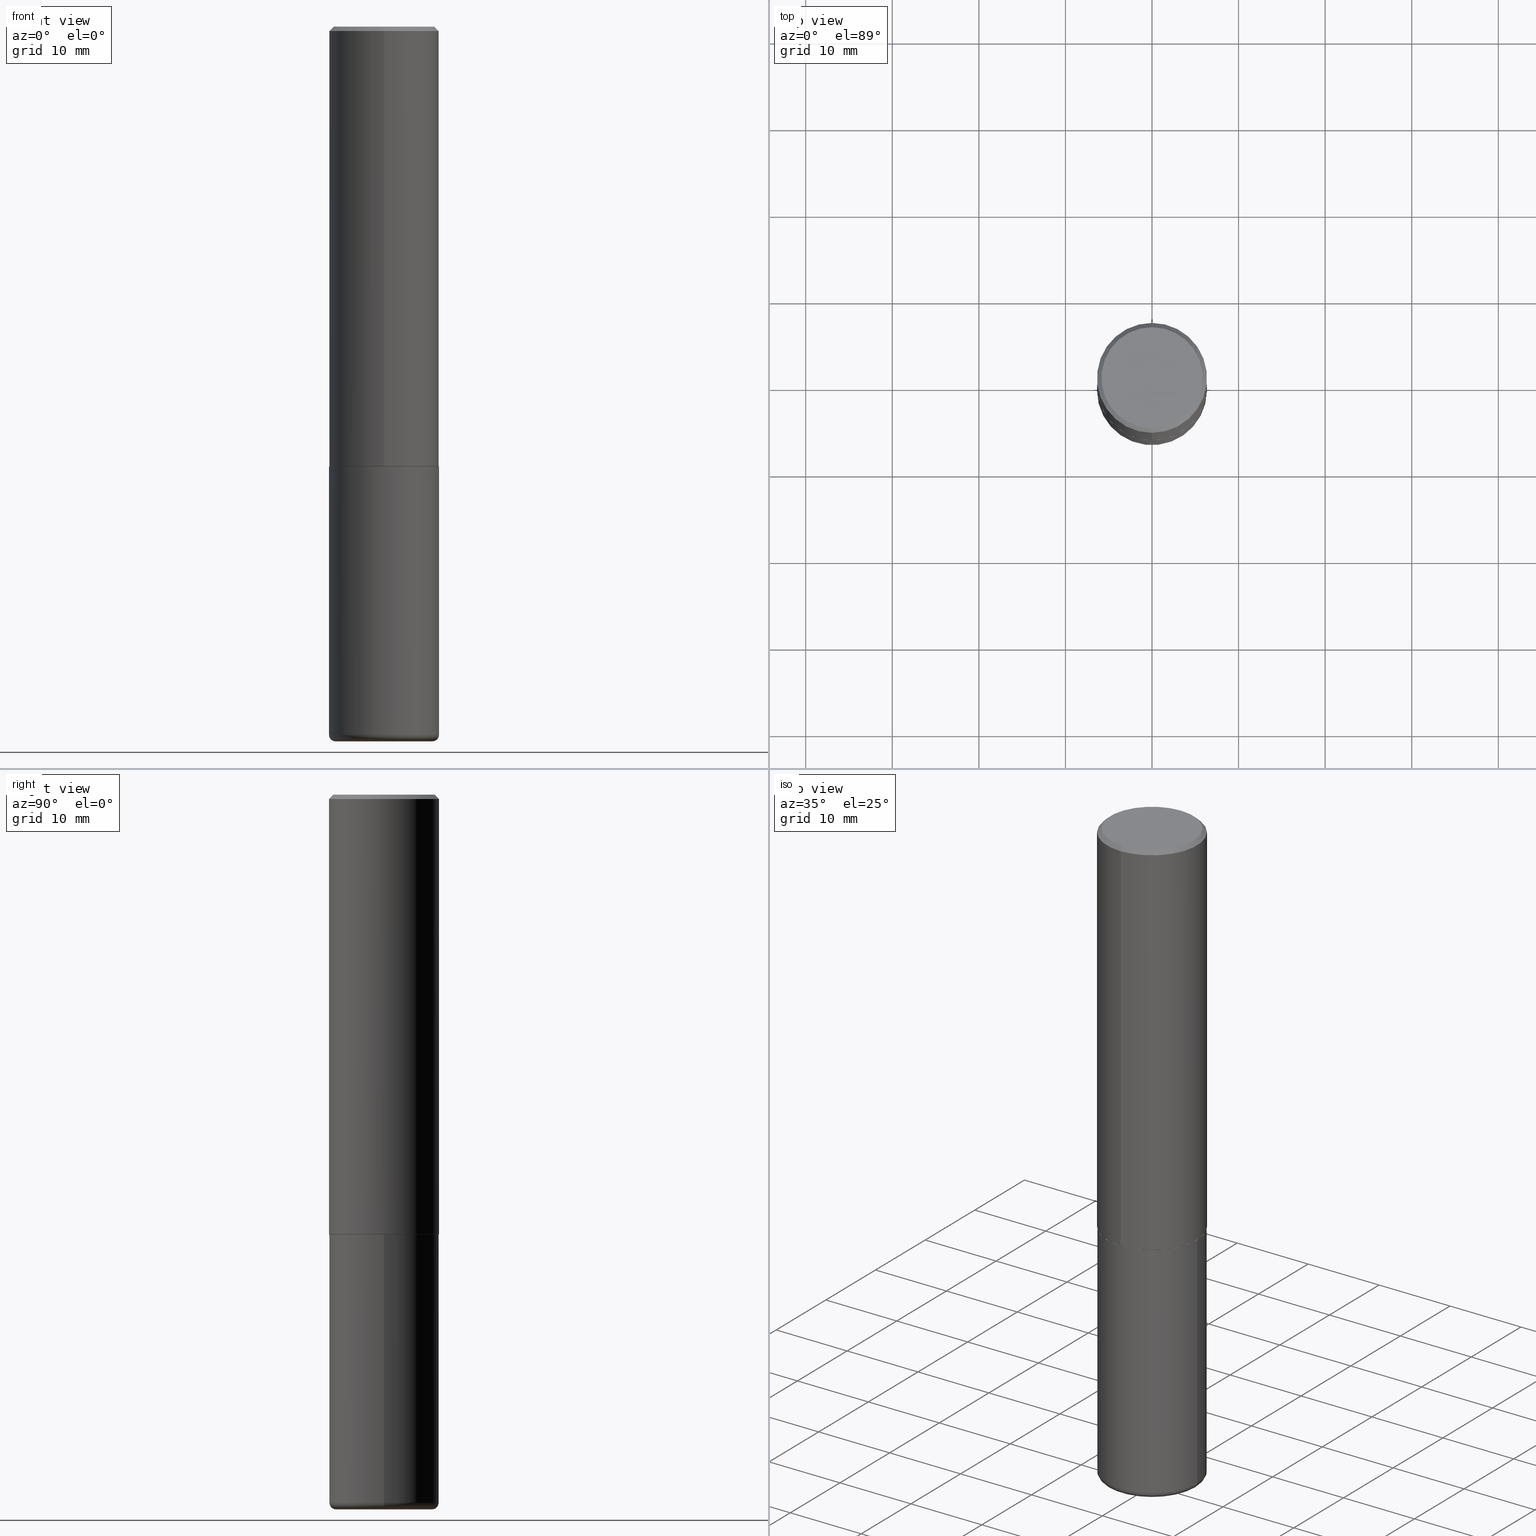
[diagram: canonical four-view strip — front | top / right | iso, engineering-drawing reading convention]
A machine part, canonical four-view strip (front | top / right | iso — engineering-drawing reading convention). The complete STEP part file that produces these views, byte-faithful:
ISO-10303-21;
HEADER;
FILE_DESCRIPTION (( 'STEP AP203' ),
    '1' );
FILE_NAME ('77345.STEP',
    '2024-05-02T19:30:28',
    ( '' ),
    ( '' ),
    'SwSTEP 2.0',
    'SolidWorks 2023',
    '' );
FILE_SCHEMA (( 'CONFIG_CONTROL_DESIGN' ));
ENDSEC;

DATA;
#1 = DIRECTION ( 'NONE',  ( -1.000000000000000000, 7.105427357601001859E-15, 0.000000000000000000 ) ) ;
#2 = PLANE ( 'NONE',  #59 ) ;
#3 = ORIENTED_EDGE ( 'NONE', *, *, #143, .T. ) ;
#4 = DIRECTION ( 'NONE',  ( 2.444078991372175563E-29, -3.493471632758652550E-15, -1.000000000000000000 ) ) ;
#5 = CONICAL_SURFACE ( 'NONE', #258, 0.2500000000000000555, 0.7853981633974466137 ) ;
#6 = EDGE_LOOP ( 'NONE', ( #95, #199, #263, #261 ) ) ;
#7 = CIRCLE ( 'NONE', #102, 0.2500000000000000555 ) ;
#8 = CARTESIAN_POINT ( 'NONE',  ( 4.888157982744351127E-29, -6.986943265517304311E-15, -2.000000000000000000 ) ) ;
#9 = PERSON_AND_ORGANIZATION ( #47, #25 ) ;
#10 = EDGE_CURVE ( 'NONE', #130, #390, #146, .T. ) ;
#11 = DATE_TIME_ROLE ( 'creation_date' ) ;
#12 = CIRCLE ( 'NONE', #67, 0.2199999999999999734 ) ;
#13 = APPLICATION_PROTOCOL_DEFINITION ( 'international standard', 'config_control_design', 1994, #416 ) ;
#14 = DATE_AND_TIME ( #270, #326 ) ;
#15 = APPROVAL ( #267, 'UNSPECIFIED' ) ;
#16 = CLOSED_SHELL ( 'NONE', ( #204, #175, #185, #217, #85, #135 ) ) ;
#17 = CC_DESIGN_SECURITY_CLASSIFICATION ( #151, ( #373 ) ) ;
#18 = LINE ( 'NONE', #121, #379 ) ;
#19 = EDGE_CURVE ( 'NONE', #230, #311, #234, .T. ) ;
#20 = CC_DESIGN_PERSON_AND_ORGANIZATION_ASSIGNMENT ( #269, #145, ( #262 ) ) ;
#21 = DIRECTION ( 'NONE',  ( 1.000000000000000000, -6.982962677686266711E-15, 0.000000000000000000 ) ) ;
#22 = DIRECTION ( 'NONE',  ( -2.445468806185136597E-29, 3.491481338843145583E-15, 1.000000000000000000 ) ) ;
#23 = ADVANCED_FACE ( 'NONE', ( #74 ), #5, .T. ) ;
#24 = VECTOR ( 'NONE', #36, 39.37007874015748854 ) ;
#25 = ORGANIZATION ( 'UNSPECIFIED', 'UNSPECIFIED', '' ) ;
#26 = CYLINDRICAL_SURFACE ( 'NONE', #296, 0.2500000000000000000 ) ;
#27 = DIRECTION ( 'NONE',  ( -4.937700262165053702E-15, -0.7071067811866175168, 0.7071067811864775177 ) ) ;
#28 = VERTEX_POINT ( 'NONE', #323 ) ;
#29 = DIMENSIONAL_EXPONENTS ( 1.000000000000000000, 0.000000000000000000, 0.000000000000000000, 0.000000000000000000, 0.000000000000000000, 0.000000000000000000, 0.000000000000000000 ) ;
#30 = DIRECTION ( 'NONE',  ( 1.000000000000000000, -6.982962677686263555E-15, 0.000000000000000000 ) ) ;
#31 = EDGE_LOOP ( 'NONE', ( #385, #165, #383, #223 ) ) ;
#32 = AXIS2_PLACEMENT_3D ( 'NONE', #179, #182, #21 ) ;
#33 =( CONVERSION_BASED_UNIT ( 'INCH', #315 ) LENGTH_UNIT ( ) NAMED_UNIT ( #29 ) );
#34 = AXIS2_PLACEMENT_3D ( 'NONE', #75, #101, #347 ) ;
#35 = ORIENTED_EDGE ( 'NONE', *, *, #313, .F. ) ;
#36 = DIRECTION ( 'NONE',  ( 4.937700262164538576E-15, 0.7071067811865437980, -0.7071067811865511255 ) ) ;
#37 = VERTEX_POINT ( 'NONE', #178 ) ;
#38 = PLANE ( 'NONE',  #34 ) ;
#39 = ORIENTED_EDGE ( 'NONE', *, *, #117, .F. ) ;
#40 = ADVANCED_FACE ( 'NONE', ( #119 ), #42, .T. ) ;
#41 = SECURITY_CLASSIFICATION_LEVEL ( 'unclassified' ) ;
#42 = CONICAL_SURFACE ( 'NONE', #53, 0.2489999999999999991, 0.7853981633975507526 ) ;
#43 =( GEOMETRIC_REPRESENTATION_CONTEXT ( 3 ) GLOBAL_UNCERTAINTY_ASSIGNED_CONTEXT ( ( #208 ) ) GLOBAL_UNIT_ASSIGNED_CONTEXT ( ( #33, #164, #286 ) ) REPRESENTATION_CONTEXT ( 'NONE', 'WORKASPACE' ) );
#44 = PERSON_AND_ORGANIZATION ( #47, #25 ) ;
#45 = EDGE_CURVE ( 'NONE', #230, #169, #89, .T. ) ;
#46 = EDGE_CURVE ( 'NONE', #222, #37, #295, .T. ) ;
#47 = PERSON ( 'UNSPECIFIED', 'UNSPECIFIED', 'UNSPECIFIED', ('UNSPECIFIED'), ('UNSPECIFIED'), ('UNSPECIFIED') ) ;
#48 = AXIS2_PLACEMENT_3D ( 'NONE', #291, #226, #137 ) ;
#49 = EDGE_CURVE ( 'NONE', #290, #287, #183, .T. ) ;
#50 = COORDINATED_UNIVERSAL_TIME_OFFSET ( 5, 0, .BEHIND. ) ;
#51 = CARTESIAN_POINT ( 'NONE',  ( 4.885713903752978284E-29, -6.983449793884546288E-15, -1.998999999999999888 ) ) ;
#52 = CARTESIAN_POINT ( 'NONE',  ( 1.776356839400276103E-15, 0.2499999999999932832, -1.999000000000000776 ) ) ;
#53 = AXIS2_PLACEMENT_3D ( 'NONE', #134, #364, #70 ) ;
#54 = CARTESIAN_POINT ( 'NONE',  ( 0.2199999999999999734, -1.277882170016590784E-14, -3.220000000000000195 ) ) ;
#55 = DIRECTION ( 'NONE',  ( -2.445468806185136597E-29, 3.491481338843145583E-15, 1.000000000000000000 ) ) ;
#56 = ADVANCED_FACE ( 'NONE', ( #293 ), #2, .F. ) ;
#57 = DIRECTION ( 'NONE',  ( 2.438088387897960049E-29, -3.491481338843145188E-15, -1.000000000000000000 ) ) ;
#58 = AXIS2_PLACEMENT_3D ( 'NONE', #337, #57, #245 ) ;
#59 = AXIS2_PLACEMENT_3D ( 'NONE', #229, #363, #360 ) ;
#60 = CARTESIAN_POINT ( 'NONE',  ( -1.738757706743831360E-15, -0.2490000000000069935, -1.999999999999999112 ) ) ;
#61 = ORIENTED_EDGE ( 'NONE', *, *, #46, .T. ) ;
#62 = CARTESIAN_POINT ( 'NONE',  ( 4.885713903752978284E-29, -6.983449793884546288E-15, -1.998999999999999888 ) ) ;
#63 = EDGE_CURVE ( 'NONE', #390, #189, #325, .T. ) ;
#64 = ORIENTED_EDGE ( 'NONE', *, *, #253, .T. ) ;
#65 = ORIENTED_EDGE ( 'NONE', *, *, #63, .F. ) ;
#66 = DIRECTION ( 'NONE',  ( -2.444078991372175563E-29, 3.493471632758652550E-15, 1.000000000000000000 ) ) ;
#67 = AXIS2_PLACEMENT_3D ( 'NONE', #210, #334, #343 ) ;
#68 =( LENGTH_UNIT ( ) NAMED_UNIT ( * ) SI_UNIT ( $, .METRE. ) );
#69 = ORIENTED_EDGE ( 'NONE', *, *, #122, .T. ) ;
#70 = DIRECTION ( 'NONE',  ( -6.982962677686265133E-15, -1.000000000000000000, 3.291383124896702687E-15 ) ) ;
#71 = DIRECTION ( 'NONE',  ( 7.105427357601001859E-15, 1.000000000000000000, -3.491481338843145583E-15 ) ) ;
#72 = CARTESIAN_POINT ( 'NONE',  ( 1.745740669421567269E-15, 0.2499999999999999722, -0.02000000000000096492 ) ) ;
#73 = ORIENTED_EDGE ( 'NONE', *, *, #19, .F. ) ;
#74 = FACE_OUTER_BOUND ( 'NONE', #220, .T. ) ;
#75 = CARTESIAN_POINT ( 'NONE',  ( 4.888157982744351127E-29, -6.986943265517304311E-15, -2.000000000000000000 ) ) ;
#76 = CARTESIAN_POINT ( 'NONE',  ( 7.874409555916140425E-29, -1.124256991107492948E-14, -3.220000000000000195 ) ) ;
#77 = DATE_AND_TIME ( #82, #344 ) ;
#78 = CC_DESIGN_APPROVAL ( #15, ( #207 ) ) ;
#79 = ORIENTED_EDGE ( 'NONE', *, *, #155, .T. ) ;
#80 = PERSON_AND_ORGANIZATION ( #47, #25 ) ;
#81 = ORIENTED_EDGE ( 'NONE', *, *, #10, .F. ) ;
#82 = CALENDAR_DATE ( 2024, 2, 5 ) ;
#83 = AXIS2_PLACEMENT_3D ( 'NONE', #197, #362, #132 ) ;
#84 = CALENDAR_DATE ( 2024, 2, 5 ) ;
#85 = ADVANCED_FACE ( 'NONE', ( #198 ), #138, .T. ) ;
#86 = CARTESIAN_POINT ( 'NONE',  ( 1.358398051899499020E-28, -3.275945279050367640E-15, -3.249999999999999556 ) ) ;
#87 = DIRECTION ( 'NONE',  ( 1.000000000000000000, -6.982962677686266711E-15, 0.000000000000000000 ) ) ;
#88 = DIRECTION ( 'NONE',  ( 1.000000000000000000, -6.982962677686277755E-15, 0.000000000000000000 ) ) ;
#89 = CIRCLE ( 'NONE', #282, 0.2499999999999999722 ) ;
#90 = DIRECTION ( 'NONE',  ( -2.444078991372175563E-29, 3.493471632758652550E-15, 1.000000000000000000 ) ) ;
#91 = DIRECTION ( 'NONE',  ( 1.000000000000000000, -6.982962677686263555E-15, 0.000000000000000000 ) ) ;
#92 = EDGE_LOOP ( 'NONE', ( #316, #294, #136, #142 ) ) ;
#93 = CONICAL_SURFACE ( 'NONE', #336, 0.2500000000000000555, 0.7853981633974466137 ) ;
#94 = DIRECTION ( 'NONE',  ( -2.444078991372175563E-29, 3.493471632758652550E-15, 1.000000000000000000 ) ) ;
#95 = ORIENTED_EDGE ( 'NONE', *, *, #284, .F. ) ;
#96 = EDGE_CURVE ( 'NONE', #28, #311, #335, .T. ) ;
#97 = CARTESIAN_POINT ( 'NONE',  ( -0.2199999999999999734, -9.679375892402709259E-15, -3.220000000000000195 ) ) ;
#98 = ORIENTED_EDGE ( 'NONE', *, *, #403, .T. ) ;
#99 = FACE_OUTER_BOUND ( 'NONE', #382, .T. ) ;
#100 = VERTEX_POINT ( 'NONE', #52 ) ;
#101 = DIRECTION ( 'NONE',  ( -2.444078991372175283E-29, 3.493471632758652550E-15, 1.000000000000000000 ) ) ;
#102 = AXIS2_PLACEMENT_3D ( 'NONE', #224, #279, #324 ) ;
#103 = ADVANCED_FACE ( 'NONE', ( #328 ), #144, .T. ) ;
#104 = ORIENTED_EDGE ( 'NONE', *, *, #45, .T. ) ;
#105 = DIRECTION ( 'NONE',  ( 1.000000000000000000, -6.982962677686265133E-15, 4.883557194083112340E-29 ) ) ;
#106 = EDGE_LOOP ( 'NONE', ( #35, #98, #61, #131 ) ) ;
#107 = PERSON_AND_ORGANIZATION_ROLE ( 'design_supplier' ) ;
#108 = EDGE_LOOP ( 'NONE', ( #168, #413 ) ) ;
#109 = CARTESIAN_POINT ( 'NONE',  ( 0.000000000000000000, 0.000000000000000000, 0.000000000000000000 ) ) ;
#110 = AXIS2_PLACEMENT_3D ( 'NONE', #8, #307, #161 ) ;
#111 = AXIS2_PLACEMENT_3D ( 'NONE', #384, #387, #321 ) ;
#112 = APPLICATION_CONTEXT ( 'configuration controlled 3d designs of mechanical parts and assemblies' ) ;
#113 = COORDINATED_UNIVERSAL_TIME_OFFSET ( 5, 0, .BEHIND. ) ;
#114 = SHAPE_DEFINITION_REPRESENTATION ( #174, #214 ) ;
#115 = VERTEX_POINT ( 'NONE', #308 ) ;
#116 = APPROVAL_STATUS ( 'not_yet_approved' ) ;
#117 = EDGE_CURVE ( 'NONE', #311, #28, #271, .T. ) ;
#118 = AXIS2_PLACEMENT_3D ( 'NONE', #62, #94, #354 ) ;
#119 = FACE_OUTER_BOUND ( 'NONE', #6, .T. ) ;
#120 = CARTESIAN_POINT ( 'NONE',  ( -0.2199999999999999734, -9.625166702121343187E-15, -3.249999999999999556 ) ) ;
#121 = CARTESIAN_POINT ( 'NONE',  ( 1.769251412042697971E-15, 0.2489999999999930047, -2.000000000000000888 ) ) ;
#122 = EDGE_CURVE ( 'NONE', #390, #130, #244, .T. ) ;
#123 = DIRECTION ( 'NONE',  ( -4.851104656540954809E-15, -0.7071067811865486830, -0.7071067811865462405 ) ) ;
#124 = AXIS2_PLACEMENT_3D ( 'NONE', #51, #306, #212 ) ;
#125 = CC_DESIGN_APPROVAL ( #388, ( #373 ) ) ;
#126 = CYLINDRICAL_SURFACE ( 'NONE', #206, 0.2500000000000000000 ) ;
#127 = EDGE_CURVE ( 'NONE', #115, #169, #162, .T. ) ;
#128 = CARTESIAN_POINT ( 'NONE',  ( -0.2499999999999998057, -9.466213071674679013E-15, -3.220000000000000195 ) ) ;
#129 = CARTESIAN_POINT ( 'NONE',  ( -0.2500000000000000000, -7.336409454980359463E-15, -2.000000000000000000 ) ) ;
#130 = VERTEX_POINT ( 'NONE', #181 ) ;
#131 = ORIENTED_EDGE ( 'NONE', *, *, #394, .F. ) ;
#132 = DIRECTION ( 'NONE',  ( -6.982962677686266711E-15, -1.000000000000000000, 3.493471632758652550E-15 ) ) ;
#133 = ORIENTED_EDGE ( 'NONE', *, *, #127, .F. ) ;
#134 = CARTESIAN_POINT ( 'NONE',  ( 4.888157982744351127E-29, -6.986943265517304311E-15, -2.000000000000000000 ) ) ;
#135 = ADVANCED_FACE ( 'NONE', ( #277 ), #275, .T. ) ;
#136 = ORIENTED_EDGE ( 'NONE', *, *, #155, .F. ) ;
#137 = DIRECTION ( 'NONE',  ( -6.982962677686265922E-15, -1.000000000000000000, 3.493471632758652550E-15 ) ) ;
#138 = TOROIDAL_SURFACE ( 'NONE', #408, 0.2199999999999999734, 0.02999999999999969705 ) ;
#139 = CARTESIAN_POINT ( 'NONE',  ( 4.890937612370273194E-29, -6.982962677686291165E-15, -2.000000000000000000 ) ) ;
#140 = ORIENTED_EDGE ( 'NONE', *, *, #320, .T. ) ;
#141 = PERSON_AND_ORGANIZATION ( #47, #25 ) ;
#142 = ORIENTED_EDGE ( 'NONE', *, *, #246, .F. ) ;
#143 = EDGE_CURVE ( 'NONE', #280, #115, #12, .T. ) ;
#144 = CYLINDRICAL_SURFACE ( 'NONE', #365, 0.2500000000000001110 ) ;
#145 = PERSON_AND_ORGANIZATION_ROLE ( 'design_owner' ) ;
#146 = CIRCLE ( 'NONE', #48, 0.2299999999999997047 ) ;
#147 = LOCAL_TIME ( 15, 30, 28.00000000000000000, #304 ) ;
#148 = COORDINATED_UNIVERSAL_TIME_OFFSET ( 5, 0, .BEHIND. ) ;
#149 = CALENDAR_DATE ( 2024, 2, 5 ) ;
#150 = DIRECTION ( 'NONE',  ( -2.445468806185136597E-29, 3.491481338843145583E-15, 1.000000000000000000 ) ) ;
#151 = SECURITY_CLASSIFICATION ( '', '', #41 ) ;
#152 = CARTESIAN_POINT ( 'NONE',  ( 0.000000000000000000, 0.000000000000000000, 0.000000000000000000 ) ) ;
#153 = DESIGN_CONTEXT ( 'detailed design', #416, 'design' ) ;
#154 = CARTESIAN_POINT ( 'NONE',  ( 1.745740669421567269E-15, 0.2499999999999999722, -0.02000000000000096492 ) ) ;
#155 = EDGE_CURVE ( 'NONE', #222, #100, #300, .T. ) ;
#156 = CARTESIAN_POINT ( 'NONE',  ( 0.000000000000000000, 0.000000000000000000, 0.000000000000000000 ) ) ;
#157 = CARTESIAN_POINT ( 'NONE',  ( -1.715124499442882496E-15, -0.2500000000000001110, -0.01999999999999921632 ) ) ;
#158 = DIRECTION ( 'NONE',  ( -2.445468806185136597E-29, 3.491481338843145583E-15, 1.000000000000000000 ) ) ;
#159 = EDGE_LOOP ( 'NONE', ( #69, #283 ) ) ;
#160 = CARTESIAN_POINT ( 'NONE',  ( 4.888157982744373443E-31, -6.986943265517335816E-17, -0.02000000000000009062 ) ) ;
#161 = DIRECTION ( 'NONE',  ( -6.982962677686265133E-15, -1.000000000000000000, 3.291383124896702687E-15 ) ) ;
#162 = CIRCLE ( 'NONE', #239, 0.02999999999999967970 ) ;
#163 = AXIS2_PLACEMENT_3D ( 'NONE', #109, #402, #209 ) ;
#164 =( NAMED_UNIT ( * ) PLANE_ANGLE_UNIT ( ) SI_UNIT ( $, .RADIAN. ) );
#165 = ORIENTED_EDGE ( 'NONE', *, *, #19, .T. ) ;
#166 = ORIENTED_EDGE ( 'NONE', *, *, #45, .F. ) ;
#167 = CARTESIAN_POINT ( 'NONE',  ( 4.888157982744351127E-29, -6.986943265517304311E-15, -2.000000000000000000 ) ) ;
#168 = ORIENTED_EDGE ( 'NONE', *, *, #96, .T. ) ;
#169 = VERTEX_POINT ( 'NONE', #278 ) ;
#170 = ORIENTED_EDGE ( 'NONE', *, *, #340, .F. ) ;
#171 = VECTOR ( 'NONE', #202, 39.37007874015748143 ) ;
#172 = CONICAL_SURFACE ( 'NONE', #266, 0.2489999999999999991, 0.7853981633975507526 ) ;
#173 = COORDINATED_UNIVERSAL_TIME_OFFSET ( 5, 0, .BEHIND. ) ;
#174 = PRODUCT_DEFINITION_SHAPE ( 'NONE', 'NONE',  #207 ) ;
#175 = ADVANCED_FACE ( 'NONE', ( #309 ), #356, .T. ) ;
#176 = AXIS2_PLACEMENT_3D ( 'NONE', #312, #158, #30 ) ;
#177 = MECHANICAL_CONTEXT ( 'NONE', #112, 'mechanical' ) ;
#178 = CARTESIAN_POINT ( 'NONE',  ( -1.715124499442882496E-15, -0.2500000000000001110, -0.01999999999999921632 ) ) ;
#179 = CARTESIAN_POINT ( 'NONE',  ( 4.890937612370273194E-29, -6.982962677686291165E-15, -2.000000000000000000 ) ) ;
#180 = DIRECTION ( 'NONE',  ( -2.444078991372175563E-29, 3.493471632758652550E-15, 1.000000000000000000 ) ) ;
#181 = CARTESIAN_POINT ( 'NONE',  ( -1.646519519465166376E-15, -0.2299999999999997047, 1.115557654912385711E-15 ) ) ;
#182 = DIRECTION ( 'NONE',  ( -2.445468806185136597E-29, 3.491481338843145583E-15, 1.000000000000000000 ) ) ;
#183 = CIRCLE ( 'NONE', #110, 0.2489999999999999991 ) ;
#184 = CIRCLE ( 'NONE', #176, 0.2499999999999999722 ) ;
#185 = ADVANCED_FACE ( 'NONE', ( #305 ), #186, .F. ) ;
#186 = PLANE ( 'NONE',  #58 ) ;
#187 = ORIENTED_EDGE ( 'NONE', *, *, #320, .F. ) ;
#188 = FACE_OUTER_BOUND ( 'NONE', #355, .T. ) ;
#189 = VERTEX_POINT ( 'NONE', #154 ) ;
#190 = ORIENTED_EDGE ( 'NONE', *, *, #340, .T. ) ;
#191 = DIRECTION ( 'NONE',  ( 1.000000000000000000, -6.982962677686263555E-15, 0.000000000000000000 ) ) ;
#192 = APPROVAL_PERSON_ORGANIZATION ( #9, #15, #205 ) ;
#193 = ORIENTED_EDGE ( 'NONE', *, *, #313, .T. ) ;
#194 = CC_DESIGN_PERSON_AND_ORGANIZATION_ASSIGNMENT ( #44, #399, ( #151 ) ) ;
#195 = CYLINDRICAL_SURFACE ( 'NONE', #83, 0.2500000000000001110 ) ;
#196 = ORIENTED_EDGE ( 'NONE', *, *, #394, .T. ) ;
#197 = CARTESIAN_POINT ( 'NONE',  ( 0.000000000000000000, 0.000000000000000000, 0.000000000000000000 ) ) ;
#198 = FACE_OUTER_BOUND ( 'NONE', #353, .T. ) ;
#199 = ORIENTED_EDGE ( 'NONE', *, *, #49, .T. ) ;
#200 = APPROVAL_PERSON_ORGANIZATION ( #299, #375, #327 ) ;
#201 = APPROVAL_STATUS ( 'not_yet_approved' ) ;
#202 = DIRECTION ( 'NONE',  ( -2.445468806185136877E-29, 3.491481338843145188E-15, 1.000000000000000000 ) ) ;
#203 = DATE_AND_TIME ( #149, #272 ) ;
#204 = ADVANCED_FACE ( 'NONE', ( #374 ), #26, .T. ) ;
#205 = APPROVAL_ROLE ( '' ) ;
#206 = AXIS2_PLACEMENT_3D ( 'NONE', #152, #376, #411 ) ;
#207 = PRODUCT_DEFINITION ( 'UNKNOWN', '', #373, #153 ) ;
#208 = UNCERTAINTY_MEASURE_WITH_UNIT (LENGTH_MEASURE( 1.000000000000000082E-05 ), #33, 'distance_accuracy_value', 'NONE');
#209 = DIRECTION ( 'NONE',  ( 1.000000000000000000, 0.000000000000000000, 0.000000000000000000 ) ) ;
#210 = CARTESIAN_POINT ( 'NONE',  ( 7.947773620101692818E-29, -1.134731435124022127E-14, -3.249999999999999556 ) ) ;
#211 = EDGE_CURVE ( 'NONE', #130, #37, #407, .T. ) ;
#212 = DIRECTION ( 'NONE',  ( -6.982962677686265922E-15, -1.000000000000000000, 3.278217592397112312E-15 ) ) ;
#213 = AXIS2_PLACEMENT_3D ( 'NONE', #249, #221, #378 ) ;
#214 = ADVANCED_BREP_SHAPE_REPRESENTATION ( '77345', ( #348, #339, #163 ), #43 ) ;
#215 = CARTESIAN_POINT ( 'NONE',  ( 0.000000000000000000, 0.000000000000000000, 0.000000000000000000 ) ) ;
#216 = CARTESIAN_POINT ( 'NONE',  ( 7.947773620101692818E-29, -1.134731435124022127E-14, -3.249999999999999556 ) ) ;
#217 = ADVANCED_FACE ( 'NONE', ( #377 ), #126, .T. ) ;
#218 = LINE ( 'NONE', #60, #298 ) ;
#219 = ORIENTED_EDGE ( 'NONE', *, *, #122, .F. ) ;
#220 = EDGE_LOOP ( 'NONE', ( #81, #350, #190, #65 ) ) ;
#221 = DIRECTION ( 'NONE',  ( -2.444078991372175563E-29, 3.493471632758652550E-15, 1.000000000000000000 ) ) ;
#222 = VERTEX_POINT ( 'NONE', #243 ) ;
#223 = ORIENTED_EDGE ( 'NONE', *, *, #253, .F. ) ;
#224 = CARTESIAN_POINT ( 'NONE',  ( 4.888157982744373443E-31, -6.986943265517335816E-17, -0.02000000000000009062 ) ) ;
#225 = CC_DESIGN_PERSON_AND_ORGANIZATION_ASSIGNMENT ( #80, #400, ( #373 ) ) ;
#226 = DIRECTION ( 'NONE',  ( -2.444078991372175563E-29, 3.493471632758652550E-15, 1.000000000000000000 ) ) ;
#227 = AXIS2_PLACEMENT_3D ( 'NONE', #310, #22, #371 ) ;
#228 = LINE ( 'NONE', #359, #398 ) ;
#229 = CARTESIAN_POINT ( 'NONE',  ( 1.606081415867839095E-15, 0.2299999999999997047, -6.474688858455407103E-16 ) ) ;
#230 = VERTEX_POINT ( 'NONE', #128 ) ;
#231 = CARTESIAN_POINT ( 'NONE',  ( 1.772804125721499462E-15, 0.2489999999999930047, -2.000000000000000888 ) ) ;
#232 = EDGE_CURVE ( 'NONE', #115, #280, #342, .T. ) ;
#233 = APPROVAL_DATE_TIME ( #14, #15 ) ;
#234 = LINE ( 'NONE', #361, #171 ) ;
#235 = AXIS2_PLACEMENT_3D ( 'NONE', #216, #248, #91 ) ;
#236 = DATE_TIME_ROLE ( 'classification_date' ) ;
#237 = PERSON_AND_ORGANIZATION ( #47, #25 ) ;
#238 = DATE_AND_TIME ( #329, #147 ) ;
#239 = AXIS2_PLACEMENT_3D ( 'NONE', #54, #370, #88 ) ;
#240 = AXIS2_PLACEMENT_3D ( 'NONE', #97, #71, #1 ) ;
#241 = CARTESIAN_POINT ( 'NONE',  ( -7.626972843823584403E-45, 1.090169890898625670E-30, 3.120591793778966343E-16 ) ) ;
#242 = DIRECTION ( 'NONE',  ( 2.438088387897960049E-29, -3.491481338843145188E-15, -1.000000000000000000 ) ) ;
#243 = CARTESIAN_POINT ( 'NONE',  ( -1.745740669421519543E-15, -0.2500000000000072720, -1.998999999999999000 ) ) ;
#244 = CIRCLE ( 'NONE', #372, 0.2299999999999997047 ) ;
#245 = DIRECTION ( 'NONE',  ( -1.000000000000000000, 6.982962677686265922E-15, -4.876176775795935793E-29 ) ) ;
#246 = EDGE_CURVE ( 'NONE', #287, #222, #218, .T. ) ;
#247 = DIRECTION ( 'NONE',  ( 6.982962677686265133E-15, 1.000000000000000000, -3.500180241882336472E-15 ) ) ;
#248 = DIRECTION ( 'NONE',  ( -2.445468806185136597E-29, 3.491481338843145583E-15, 1.000000000000000000 ) ) ;
#249 = CARTESIAN_POINT ( 'NONE',  ( 4.888157982744373443E-31, -6.986943265517335816E-17, -0.02000000000000009062 ) ) ;
#250 = CLOSED_SHELL ( 'NONE', ( #292, #333, #23, #412, #103, #40, #401, #56 ) ) ;
#251 = DIRECTION ( 'NONE',  ( 6.982962677686265133E-15, 1.000000000000000000, -3.500180241882336472E-15 ) ) ;
#252 = ORIENTED_EDGE ( 'NONE', *, *, #232, .T. ) ;
#253 = EDGE_CURVE ( 'NONE', #169, #28, #406, .T. ) ;
#254 = DIRECTION ( 'NONE',  ( -2.444078991372175563E-29, 3.493471632758652550E-15, 1.000000000000000000 ) ) ;
#255 = ORIENTED_EDGE ( 'NONE', *, *, #46, .F. ) ;
#256 = DIRECTION ( 'NONE',  ( -2.444078991372175563E-29, 3.493471632758652550E-15, 1.000000000000000000 ) ) ;
#257 = ORIENTED_EDGE ( 'NONE', *, *, #143, .F. ) ;
#258 = AXIS2_PLACEMENT_3D ( 'NONE', #297, #281, #247 ) ;
#259 = LOCAL_TIME ( 15, 30, 28.00000000000000000, #50 ) ;
#260 = CARTESIAN_POINT ( 'NONE',  ( 7.874409555916140425E-29, -1.124256991107492948E-14, -3.220000000000000195 ) ) ;
#261 = ORIENTED_EDGE ( 'NONE', *, *, #403, .F. ) ;
#262 = PRODUCT ( '77345', '77345', '', ( #177 ) ) ;
#263 = ORIENTED_EDGE ( 'NONE', *, *, #246, .T. ) ;
#264 = APPROVAL_DATE_TIME ( #203, #388 ) ;
#265 = AXIS2_PLACEMENT_3D ( 'NONE', #139, #150, #87 ) ;
#266 = AXIS2_PLACEMENT_3D ( 'NONE', #167, #256, #392 ) ;
#267 = APPROVAL_STATUS ( 'not_yet_approved' ) ;
#268 = ORIENTED_EDGE ( 'NONE', *, *, #232, .F. ) ;
#269 = PERSON_AND_ORGANIZATION ( #47, #25 ) ;
#270 = CALENDAR_DATE ( 2024, 2, 5 ) ;
#271 = CIRCLE ( 'NONE', #32, 0.2500000000000000000 ) ;
#272 = LOCAL_TIME ( 15, 30, 28.00000000000000000, #148 ) ;
#273 = CARTESIAN_POINT ( 'NONE',  ( 0.2500000000000000000, -1.745740669421566678E-15, 1.219044193948983948E-29 ) ) ;
#274 = PRODUCT_RELATED_PRODUCT_CATEGORY ( 'detail', '', ( #262 ) ) ;
#275 = PLANE ( 'NONE',  #397 ) ;
#276 = DIRECTION ( 'NONE',  ( -6.982962677686265922E-15, -1.000000000000000000, 3.493471632758652550E-15 ) ) ;
#277 = FACE_OUTER_BOUND ( 'NONE', #322, .T. ) ;
#278 = CARTESIAN_POINT ( 'NONE',  ( 0.2499999999999998057, -1.298831058049649300E-14, -3.220000000000000195 ) ) ;
#279 = DIRECTION ( 'NONE',  ( -2.444078991372175563E-29, 3.493471632758652550E-15, 1.000000000000000000 ) ) ;
#280 = VERTEX_POINT ( 'NONE', #120 ) ;
#281 = DIRECTION ( 'NONE',  ( 2.444078991372175563E-29, -3.493471632758652550E-15, -1.000000000000000000 ) ) ;
#282 = AXIS2_PLACEMENT_3D ( 'NONE', #76, #352, #191 ) ;
#283 = ORIENTED_EDGE ( 'NONE', *, *, #10, .T. ) ;
#284 = EDGE_CURVE ( 'NONE', #290, #100, #18, .T. ) ;
#285 = CC_DESIGN_PERSON_AND_ORGANIZATION_ASSIGNMENT ( #237, #302, ( #207 ) ) ;
#286 =( NAMED_UNIT ( * ) SI_UNIT ( $, .STERADIAN. ) SOLID_ANGLE_UNIT ( ) );
#287 = VERTEX_POINT ( 'NONE', #349 ) ;
#288 = DIRECTION ( 'NONE',  ( 5.024295867788576727E-15, 0.7071067811866224018, 0.7071067811864726327 ) ) ;
#289 = ORIENTED_EDGE ( 'NONE', *, *, #49, .F. ) ;
#290 = VERTEX_POINT ( 'NONE', #231 ) ;
#291 = CARTESIAN_POINT ( 'NONE',  ( -7.626972843823584403E-45, 1.090169890898625670E-30, 3.120591793778966343E-16 ) ) ;
#292 = ADVANCED_FACE ( 'NONE', ( #417 ), #172, .T. ) ;
#293 = FACE_OUTER_BOUND ( 'NONE', #159, .T. ) ;
#294 = ORIENTED_EDGE ( 'NONE', *, *, #284, .T. ) ;
#295 = LINE ( 'NONE', #358, #332 ) ;
#296 = AXIS2_PLACEMENT_3D ( 'NONE', #215, #55, #410 ) ;
#297 = CARTESIAN_POINT ( 'NONE',  ( 4.888157982744373443E-31, -6.986943265517335816E-17, -0.02000000000000009062 ) ) ;
#298 = VECTOR ( 'NONE', #27, 39.37007874015748143 ) ;
#299 = PERSON_AND_ORGANIZATION ( #47, #25 ) ;
#300 = CIRCLE ( 'NONE', #124, 0.2500000000000002776 ) ;
#301 = CIRCLE ( 'NONE', #213, 0.2500000000000000555 ) ;
#302 = PERSON_AND_ORGANIZATION_ROLE ( 'creator' ) ;
#303 = ORIENTED_EDGE ( 'NONE', *, *, #345, .F. ) ;
#304 = COORDINATED_UNIVERSAL_TIME_OFFSET ( 5, 0, .BEHIND. ) ;
#305 = FACE_OUTER_BOUND ( 'NONE', #108, .T. ) ;
#306 = DIRECTION ( 'NONE',  ( -2.444078991372175563E-29, 3.493471632758652550E-15, 1.000000000000000000 ) ) ;
#307 = DIRECTION ( 'NONE',  ( -2.444078991372175563E-29, 3.493471632758652550E-15, 1.000000000000000000 ) ) ;
#308 = CARTESIAN_POINT ( 'NONE',  ( 0.2199999999999999734, -1.288356614033119963E-14, -3.249999999999999556 ) ) ;
#309 = FACE_OUTER_BOUND ( 'NONE', #319, .T. ) ;
#310 = CARTESIAN_POINT ( 'NONE',  ( 7.874409555916140425E-29, -1.124256991107492948E-14, -3.220000000000000195 ) ) ;
#311 = VERTEX_POINT ( 'NONE', #129 ) ;
#312 = CARTESIAN_POINT ( 'NONE',  ( 7.874409555916140425E-29, -1.124256991107492948E-14, -3.220000000000000195 ) ) ;
#313 = EDGE_CURVE ( 'NONE', #100, #189, #228, .T. ) ;
#314 = EDGE_LOOP ( 'NONE', ( #73, #104, #64, #39 ) ) ;
#315 = LENGTH_MEASURE_WITH_UNIT ( LENGTH_MEASURE( 0.02539999999999999897 ), #68 );
#316 = ORIENTED_EDGE ( 'NONE', *, *, #345, .T. ) ;
#317 = APPROVAL_PERSON_ORGANIZATION ( #141, #388, #368 ) ;
#318 = FACE_OUTER_BOUND ( 'NONE', #395, .T. ) ;
#319 = EDGE_LOOP ( 'NONE', ( #252, #140, #351, #133 ) ) ;
#320 = EDGE_CURVE ( 'NONE', #280, #230, #357, .T. ) ;
#321 = DIRECTION ( 'NONE',  ( -6.982962677686265133E-15, -1.000000000000000000, 3.291383124896702687E-15 ) ) ;
#322 = EDGE_LOOP ( 'NONE', ( #268, #257 ) ) ;
#323 = CARTESIAN_POINT ( 'NONE',  ( 0.2500000000000000000, -8.728703347107857054E-15, -2.000000000000000000 ) ) ;
#324 = DIRECTION ( 'NONE',  ( -6.982962677686265133E-15, -1.000000000000000000, 3.500180241882336472E-15 ) ) ;
#325 = LINE ( 'NONE', #72, #24 ) ;
#326 = LOCAL_TIME ( 15, 30, 28.00000000000000000, #173 ) ;
#327 = APPROVAL_ROLE ( '' ) ;
#328 = FACE_OUTER_BOUND ( 'NONE', #106, .T. ) ;
#329 = CALENDAR_DATE ( 2024, 2, 5 ) ;
#330 = EDGE_CURVE ( 'NONE', #169, #230, #184, .T. ) ;
#331 = PERSON_AND_ORGANIZATION ( #47, #25 ) ;
#332 = VECTOR ( 'NONE', #66, 39.37007874015748143 ) ;
#333 = ADVANCED_FACE ( 'NONE', ( #99 ), #195, .T. ) ;
#334 = DIRECTION ( 'NONE',  ( -2.445468806185136597E-29, 3.491481338843145583E-15, 1.000000000000000000 ) ) ;
#335 = CIRCLE ( 'NONE', #265, 0.2500000000000000000 ) ;
#336 = AXIS2_PLACEMENT_3D ( 'NONE', #160, #4, #251 ) ;
#337 = CARTESIAN_POINT ( 'NONE',  ( 4.890937612370273194E-29, -6.982962677686291165E-15, -2.000000000000000000 ) ) ;
#338 = DIRECTION ( 'NONE',  ( -6.982962677686266711E-15, -1.000000000000000000, 3.493471632758652550E-15 ) ) ;
#339 = MANIFOLD_SOLID_BREP ( 'Body-Move/Copy2[2]', #250 ) ;
#340 = EDGE_CURVE ( 'NONE', #37, #189, #7, .T. ) ;
#341 = DIRECTION ( 'NONE',  ( -1.000000000000000000, 6.982962677686265922E-15, -4.876176775795935793E-29 ) ) ;
#342 = CIRCLE ( 'NONE', #235, 0.2199999999999999734 ) ;
#343 = DIRECTION ( 'NONE',  ( 1.000000000000000000, -6.982962677686263555E-15, 0.000000000000000000 ) ) ;
#344 = LOCAL_TIME ( 15, 30, 28.00000000000000000, #113 ) ;
#345 = EDGE_CURVE ( 'NONE', #287, #290, #404, .T. ) ;
#346 = CC_DESIGN_DATE_AND_TIME_ASSIGNMENT ( #396, #11, ( #207 ) ) ;
#347 = DIRECTION ( 'NONE',  ( -6.982962677686265922E-15, -1.000000000000000000, 3.493471632758652550E-15 ) ) ;
#348 = MANIFOLD_SOLID_BREP ( 'Body-Move/Copy2[1]', #16 ) ;
#349 = CARTESIAN_POINT ( 'NONE',  ( -1.738757706743831360E-15, -0.2490000000000069935, -1.999999999999999112 ) ) ;
#350 = ORIENTED_EDGE ( 'NONE', *, *, #211, .T. ) ;
#351 = ORIENTED_EDGE ( 'NONE', *, *, #330, .F. ) ;
#352 = DIRECTION ( 'NONE',  ( -2.445468806185136597E-29, 3.491481338843145583E-15, 1.000000000000000000 ) ) ;
#353 = EDGE_LOOP ( 'NONE', ( #187, #3, #415, #166 ) ) ;
#354 = DIRECTION ( 'NONE',  ( -6.982962677686265922E-15, -1.000000000000000000, 3.278217592397112312E-15 ) ) ;
#355 = EDGE_LOOP ( 'NONE', ( #386, #219, #418, #196 ) ) ;
#356 = TOROIDAL_SURFACE ( 'NONE', #227, 0.2199999999999999734, 0.02999999999999969705 ) ;
#357 = CIRCLE ( 'NONE', #240, 0.02999999999999967970 ) ;
#358 = CARTESIAN_POINT ( 'NONE',  ( -1.745740669421567467E-15, -0.2500000000000001110, 8.733679081896635319E-16 ) ) ;
#359 = CARTESIAN_POINT ( 'NONE',  ( 1.776356839400251254E-15, 0.2500000000000001110, -8.733679081896635319E-16 ) ) ;
#360 = DIRECTION ( 'NONE',  ( 6.982962677686265922E-15, 1.000000000000000000, -3.493471632758652550E-15 ) ) ;
#361 = CARTESIAN_POINT ( 'NONE',  ( -0.2500000000000000000, 1.776356839400250465E-15, -1.229733772563726445E-29 ) ) ;
#362 = DIRECTION ( 'NONE',  ( -2.444078991372175563E-29, 3.493471632758652550E-15, 1.000000000000000000 ) ) ;
#363 = DIRECTION ( 'NONE',  ( 2.444078991372175283E-29, -3.493471632758652550E-15, -1.000000000000000000 ) ) ;
#364 = DIRECTION ( 'NONE',  ( -2.444078991372175563E-29, 3.493471632758652550E-15, 1.000000000000000000 ) ) ;
#365 = AXIS2_PLACEMENT_3D ( 'NONE', #156, #90, #338 ) ;
#366 = CC_DESIGN_DATE_AND_TIME_ASSIGNMENT ( #77, #236, ( #151 ) ) ;
#367 = APPROVAL_DATE_TIME ( #238, #375 ) ;
#368 = APPROVAL_ROLE ( '' ) ;
#369 = VECTOR ( 'NONE', #405, 39.37007874015748143 ) ;
#370 = DIRECTION ( 'NONE',  ( -6.982962677686266711E-15, -1.000000000000000000, 3.491481338843145583E-15 ) ) ;
#371 = DIRECTION ( 'NONE',  ( 1.000000000000000000, -6.982962677686265133E-15, 4.883557194083112340E-29 ) ) ;
#372 = AXIS2_PLACEMENT_3D ( 'NONE', #241, #180, #276 ) ;
#373 = PRODUCT_DEFINITION_FORMATION_WITH_SPECIFIED_SOURCE ( 'ANY', '', #262, .NOT_KNOWN. ) ;
#374 = FACE_OUTER_BOUND ( 'NONE', #31, .T. ) ;
#375 = APPROVAL ( #201, 'UNSPECIFIED' ) ;
#376 = DIRECTION ( 'NONE',  ( -2.445468806185136597E-29, 3.491481338843145583E-15, 1.000000000000000000 ) ) ;
#377 = FACE_OUTER_BOUND ( 'NONE', #314, .T. ) ;
#378 = DIRECTION ( 'NONE',  ( -6.982962677686265133E-15, -1.000000000000000000, 3.500180241882336472E-15 ) ) ;
#379 = VECTOR ( 'NONE', #288, 39.37007874015748143 ) ;
#380 = CC_DESIGN_PERSON_AND_ORGANIZATION_ASSIGNMENT ( #331, #107, ( #373 ) ) ;
#381 = APPLICATION_PROTOCOL_DEFINITION ( 'international standard', 'config_control_design', 1994, #112 ) ;
#382 = EDGE_LOOP ( 'NONE', ( #79, #193, #170, #255 ) ) ;
#383 = ORIENTED_EDGE ( 'NONE', *, *, #96, .F. ) ;
#384 = CARTESIAN_POINT ( 'NONE',  ( 4.888157982744351127E-29, -6.986943265517304311E-15, -2.000000000000000000 ) ) ;
#385 = ORIENTED_EDGE ( 'NONE', *, *, #330, .T. ) ;
#386 = ORIENTED_EDGE ( 'NONE', *, *, #211, .F. ) ;
#387 = DIRECTION ( 'NONE',  ( -2.444078991372175563E-29, 3.493471632758652550E-15, 1.000000000000000000 ) ) ;
#388 = APPROVAL ( #116, 'UNSPECIFIED' ) ;
#389 = VECTOR ( 'NONE', #123, 39.37007874015748854 ) ;
#390 = VERTEX_POINT ( 'NONE', #414 ) ;
#391 = CIRCLE ( 'NONE', #118, 0.2500000000000002776 ) ;
#392 = DIRECTION ( 'NONE',  ( -6.982962677686265133E-15, -1.000000000000000000, 3.291383124896702687E-15 ) ) ;
#393 = DIRECTION ( 'NONE',  ( -2.445468806185136597E-29, 3.491481338843145583E-15, 1.000000000000000000 ) ) ;
#394 = EDGE_CURVE ( 'NONE', #189, #37, #301, .T. ) ;
#395 = EDGE_LOOP ( 'NONE', ( #303, #289 ) ) ;
#396 = DATE_AND_TIME ( #84, #259 ) ;
#397 = AXIS2_PLACEMENT_3D ( 'NONE', #86, #242, #341 ) ;
#398 = VECTOR ( 'NONE', #254, 39.37007874015748143 ) ;
#399 = PERSON_AND_ORGANIZATION_ROLE ( 'classification_officer' ) ;
#400 = PERSON_AND_ORGANIZATION_ROLE ( 'creator' ) ;
#401 = ADVANCED_FACE ( 'NONE', ( #318 ), #38, .F. ) ;
#402 = DIRECTION ( 'NONE',  ( 0.000000000000000000, 0.000000000000000000, 1.000000000000000000 ) ) ;
#403 = EDGE_CURVE ( 'NONE', #100, #222, #391, .T. ) ;
#404 = CIRCLE ( 'NONE', #111, 0.2489999999999999991 ) ;
#405 = DIRECTION ( 'NONE',  ( -2.445468806185136877E-29, 3.491481338843145188E-15, 1.000000000000000000 ) ) ;
#406 = LINE ( 'NONE', #273, #369 ) ;
#407 = LINE ( 'NONE', #157, #389 ) ;
#408 = AXIS2_PLACEMENT_3D ( 'NONE', #260, #393, #105 ) ;
#409 = CC_DESIGN_APPROVAL ( #375, ( #151 ) ) ;
#410 = DIRECTION ( 'NONE',  ( 1.000000000000000000, -6.982962677686266711E-15, 4.876176775795935793E-29 ) ) ;
#411 = DIRECTION ( 'NONE',  ( 1.000000000000000000, -6.982962677686266711E-15, 4.876176775795935793E-29 ) ) ;
#412 = ADVANCED_FACE ( 'NONE', ( #188 ), #93, .T. ) ;
#413 = ORIENTED_EDGE ( 'NONE', *, *, #117, .T. ) ;
#414 = CARTESIAN_POINT ( 'NONE',  ( 1.675911042644703182E-15, 0.2299999999999997047, -4.914392961565924424E-16 ) ) ;
#415 = ORIENTED_EDGE ( 'NONE', *, *, #127, .T. ) ;
#416 = APPLICATION_CONTEXT ( 'configuration controlled 3d designs of mechanical parts and assemblies' ) ;
#417 = FACE_OUTER_BOUND ( 'NONE', #92, .T. ) ;
#418 = ORIENTED_EDGE ( 'NONE', *, *, #63, .T. ) ;
ENDSEC;
END-ISO-10303-21;
